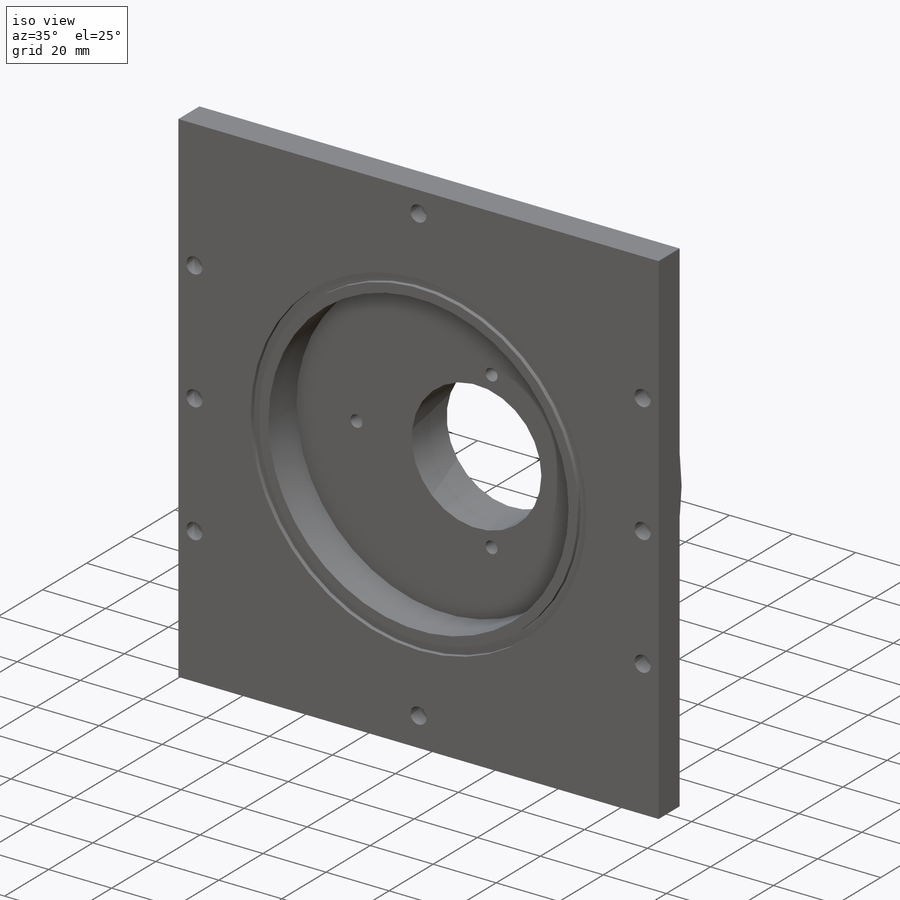
[diagram: iso view]
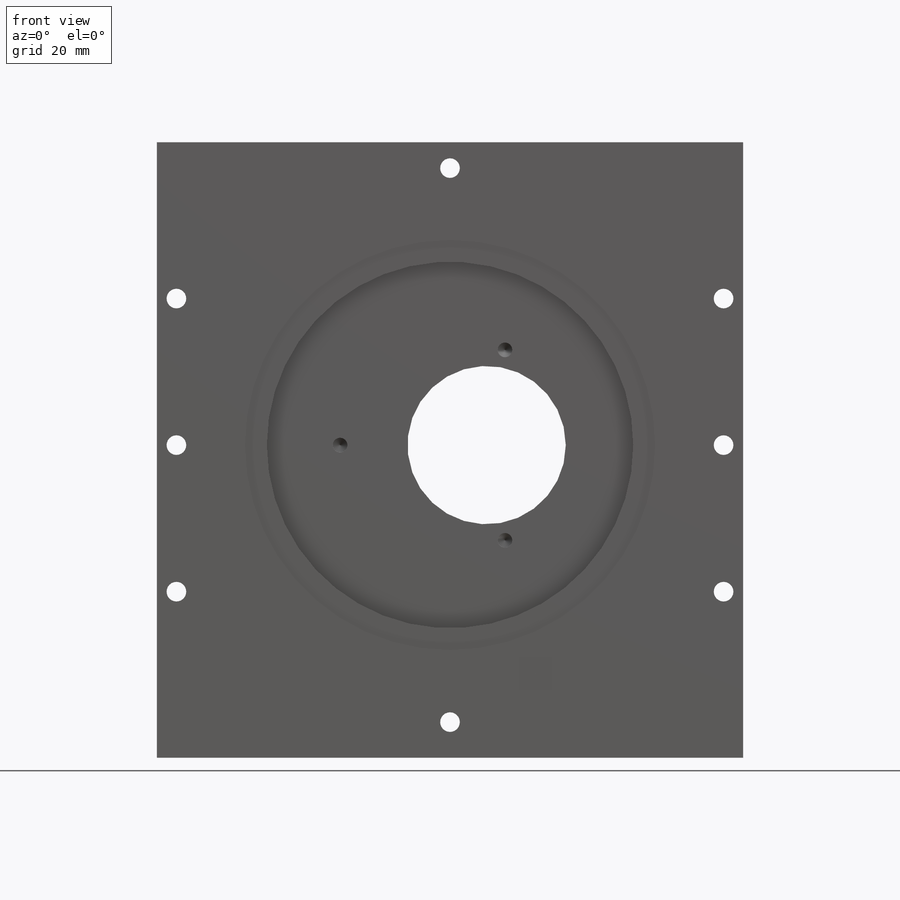
[diagram: front view]
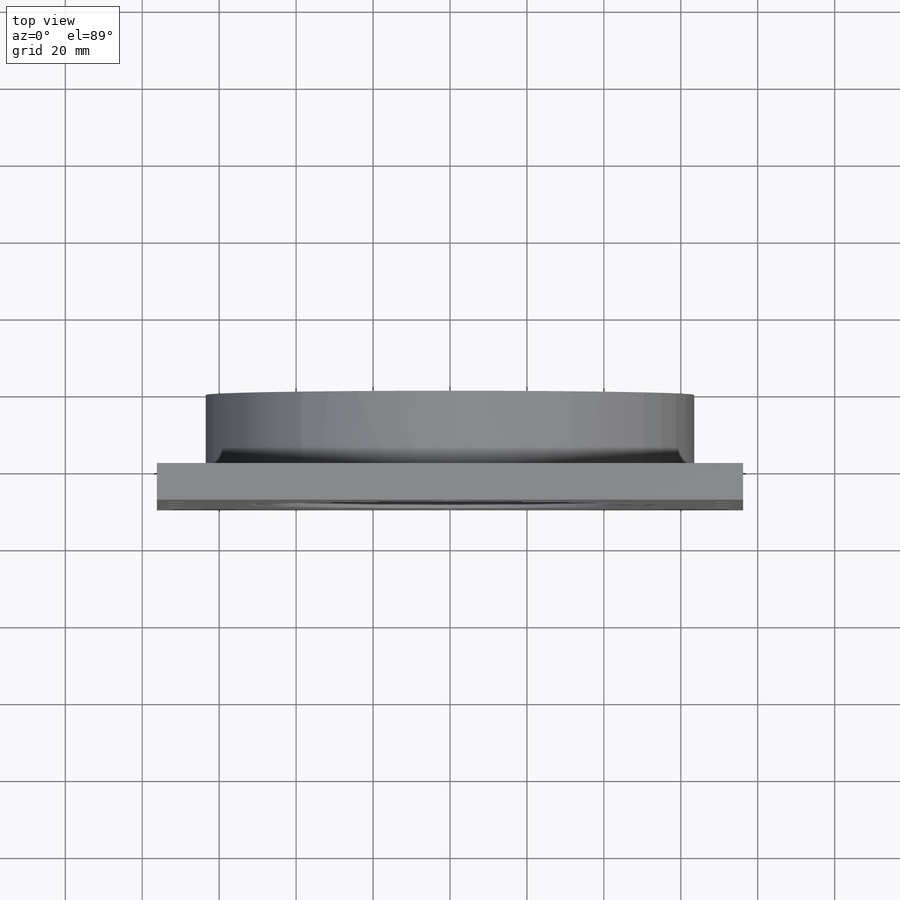
[diagram: top view]
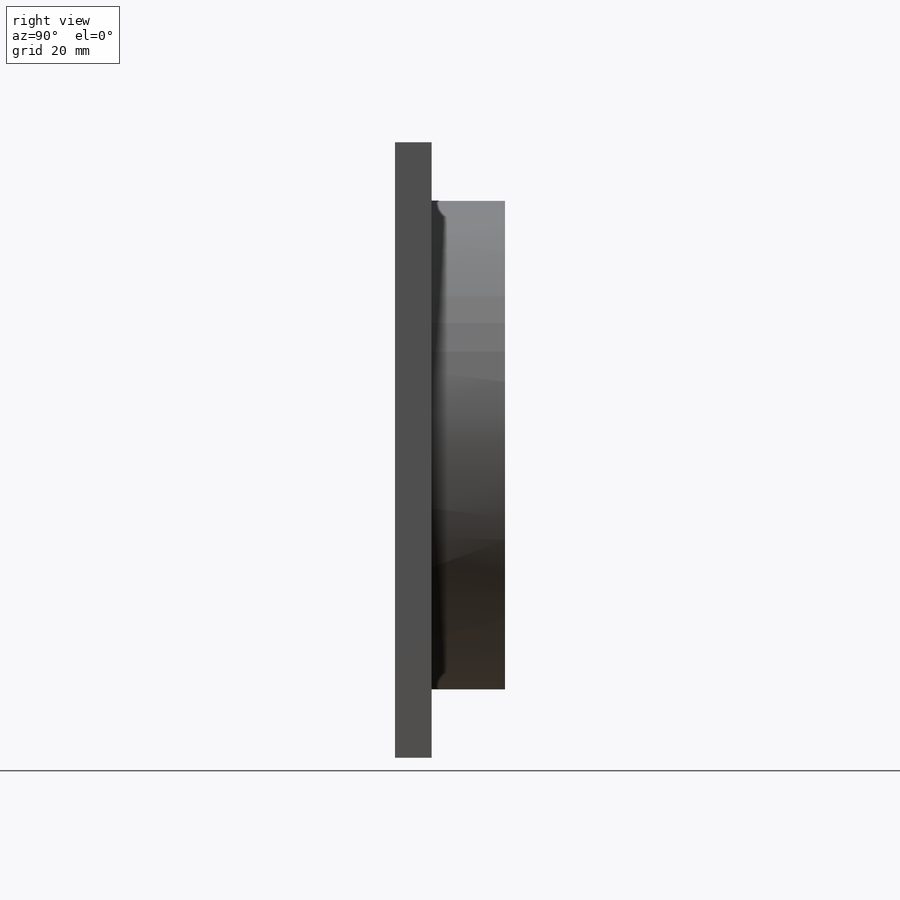
[diagram: right view]
SOLIDWORKS PART (.sldprt)
format: sldprt  version: not decoded by parser v0  size: 366,080 bytes
history: native  units: mm
features: sketch x16, hole x6, extrude x2, revolve x2, material x1, plane x1 (+13 scaffold rows collapsed)
feature tree (41):
  scaffold x13  (default folders/planes/origin — collapsed)
  material  "Material <not specified>"
  plane  "Plane1"
  sketch  "Sketch1"  dims[D1=157.48mm D2=152.4mm]
  extrude  "Boss-Extrude1"  Depth=9.525mm
  sketch  "Sketch16"
  extrude  "Boss-Extrude2"  Depth=2.54mm
  hole  "M100 Clearance Hole1"  Diameter=106.553mm Depth=1.3462mm
  sketch  "Sketch3"
  sketch  "Sketch2"  dims[hole-wizard template sketch: 46 standard entries collapsed; hole parameters kept: c15.Hole Dia.=106.553mm c15.Hole Depth=1.3462mm c15.D3=~14.816244mm c15.Drill Angle=180.0deg]
  sketch  "Sketch4"
  revolve  "Revolve1"  Angle=360deg
  sketch  "Sketch5"
  revolve  "Revolve2"  Angle=360deg
  hole  "CBORE for #10 Socket Head Cap Screw1"  Diameter=5.1054mm Depth=9.525mm
  sketch  "Sketch7"  dims[D1=144.018mm D2=9.271mm D3=76.2mm D4=76.2mm D5=4.191mm]
  sketch  "Sketch6"  dims[hole-wizard template sketch: 42 standard entries collapsed; hole parameters kept: c12.Thru Hole Depth=9.525mm c12.C'Bore Dia.=9.525mm c12.C'Bore Depth=4.826mm]
  hole  "#10-24 Tapped Hole1"  Diameter=3.7973mm Depth=8.89mm
  sketch  "Sketch9"
  sketch  "Sketch8"  dims[hole-wizard template sketch: 47 standard entries collapsed; hole parameters kept: c15.Tap Drill Depth=8.89mm c15.D3=~14.816244mm c15.Drill Angle=118.0deg]
  hole  "M90 Clearance Hole1"  Diameter=95.25mm Depth=12.7mm
  sketch  "Sketch11"
  sketch  "Sketch10"  dims[hole-wizard template sketch: 46 standard entries collapsed; hole parameters kept: c15.Hole Dia.=95.25mm c15.Hole Depth=12.7mm c15.D3=~14.816244mm c15.Drill Angle=180.0deg]
  hole  "M36 Clearance Hole1"  Diameter=41.148mm Depth=15.875mm
  sketch  "Sketch13"
  sketch  "Sketch12"  dims[hole-wizard template sketch: 59 standard entries collapsed; hole parameters kept: c18.Thru Hole Dia.=41.148mm c18.Thru Hole Depth=15.875mm]
  hole  "#10-24 Tapped Hole2"  Diameter=3.7973mm Depth=7.74954mm
  sketch  "Sketch15"
  sketch  "Sketch14"  dims[hole-wizard template sketch: 47 standard entries collapsed; hole parameters kept: c15.Tap Drill Depth=~7.74954mm c15.D3=~14.816244mm c15.Drill Angle=118.0deg]
decode coverage: 18 of 26 modeling features carry decoded parameters
note: ~ marks probable driven/reference dimensions
summary: Diameter pulled from absorbed wizard sketch
note: suppression state not decoded; provenance and decode notes live in map.json
